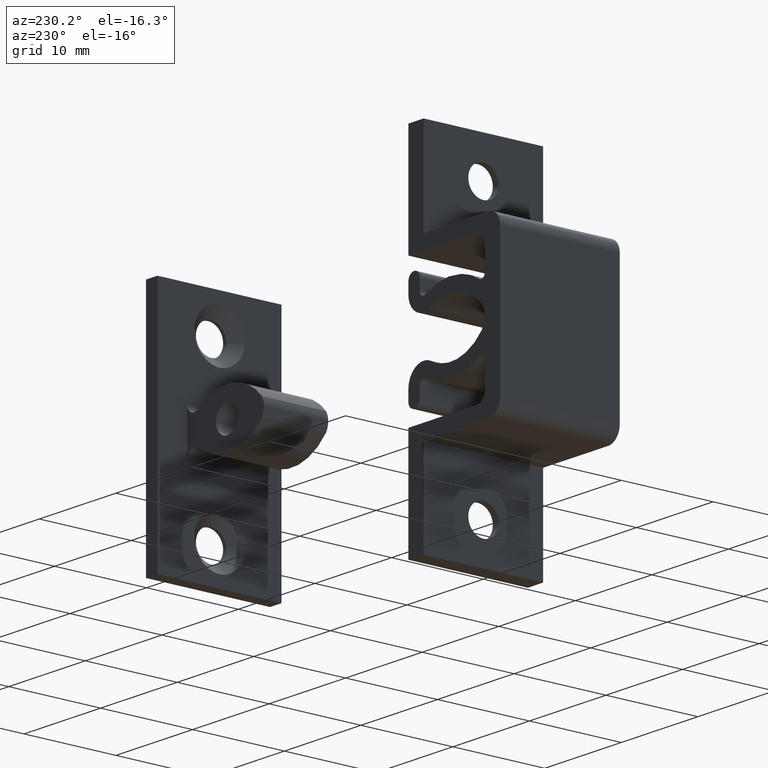
[diagram: clean part render]
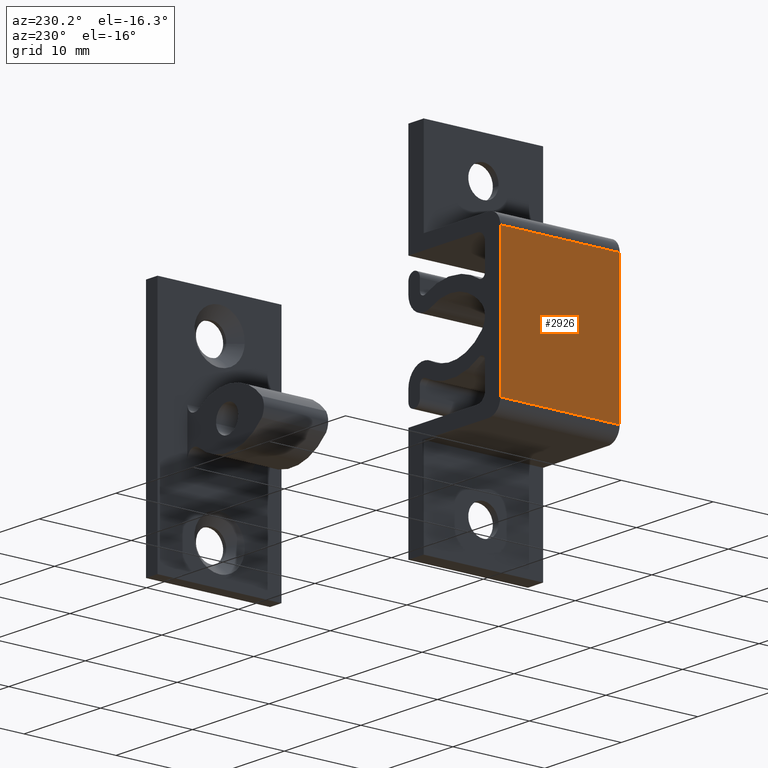
[diagram: same view with one face highlighted and labeled with its STEP entity id]
A machine part, auxiliary view. The second image highlights one B-rep face of the part: STEP entity #2926.
In plain terms, the highlighted face is a freeform B-spline surface patch.
Its self-contained STEP definition (entity closure, byte-faithful):
#2446=CARTESIAN_POINT('',(0.0,6.500000000000000,-7.500000000000000));
#2447=VERTEX_POINT('',#2446);
#2461=CARTESIAN_POINT('',(0.0,6.500000000000000,7.500000000000000));
#2462=VERTEX_POINT('',#2461);
#2463=CARTESIAN_POINT('',(0.0,6.500000000000000,-7.500000000000000));
#2464=CARTESIAN_POINT('',(0.0,6.500000000000000,7.500000000000000));
#2465=QUASI_UNIFORM_CURVE('',1,(#2463,#2464),.UNSPECIFIED.,.F.,.U.);
#2466=EDGE_CURVE('',#2447,#2462,#2465,.T.);
#2498=CARTESIAN_POINT('',(0.0,-6.500000000000000,7.500000000000000));
#2499=VERTEX_POINT('',#2498);
#2513=CARTESIAN_POINT('',(0.0,-6.500000000000000,-7.500000000000000));
#2514=VERTEX_POINT('',#2513);
#2515=CARTESIAN_POINT('',(0.0,-6.500000000000000,-7.500000000000000));
#2516=CARTESIAN_POINT('',(0.0,-6.500000000000000,7.500000000000000));
#2517=QUASI_UNIFORM_CURVE('',1,(#2515,#2516),.UNSPECIFIED.,.F.,.U.);
#2518=EDGE_CURVE('',#2514,#2499,#2517,.T.);
#2897=CARTESIAN_POINT('',(0.0,-6.500000000000000,7.500000000000000));
#2898=CARTESIAN_POINT('',(0.0,6.500000000000000,7.500000000000000));
#2899=QUASI_UNIFORM_CURVE('',1,(#2897,#2898),.UNSPECIFIED.,.F.,.U.);
#2900=EDGE_CURVE('',#2499,#2462,#2899,.T.);
#2911=CARTESIAN_POINT('',(0.0,-7.149349974803478,-8.249249970927089));
#2912=CARTESIAN_POINT('',(0.0,-7.149349974803478,8.249250373258443));
#2913=CARTESIAN_POINT('',(0.0,7.149350323490650,-8.249249970927089));
#2914=CARTESIAN_POINT('',(0.0,7.149350323490650,8.249250373258443));
#2915=B_SPLINE_SURFACE_WITH_KNOTS('',1,1,((#2911,#2913),(#2912,#2914)),.UNSPECIFIED.,.F.,.F.,.U.,(2,2),(2,2),(0.0,16.498500344185530),(0.0,14.298700298294129),.UNSPECIFIED.);
#2916=ORIENTED_EDGE('',*,*,#2466,.F.);
#2917=CARTESIAN_POINT('',(0.0,-6.500000000000000,-7.500000000000000));
#2918=CARTESIAN_POINT('',(0.0,6.500000000000000,-7.500000000000000));
#2919=QUASI_UNIFORM_CURVE('',1,(#2917,#2918),.UNSPECIFIED.,.F.,.U.);
#2920=EDGE_CURVE('',#2514,#2447,#2919,.T.);
#2921=ORIENTED_EDGE('',*,*,#2920,.F.);
#2922=ORIENTED_EDGE('',*,*,#2518,.T.);
#2923=ORIENTED_EDGE('',*,*,#2900,.T.);
#2924=EDGE_LOOP('',(#2916,#2921,#2922,#2923));
#2925=FACE_OUTER_BOUND('',#2924,.T.);
#2926=ADVANCED_FACE('',(#2925),#2915,.T.);